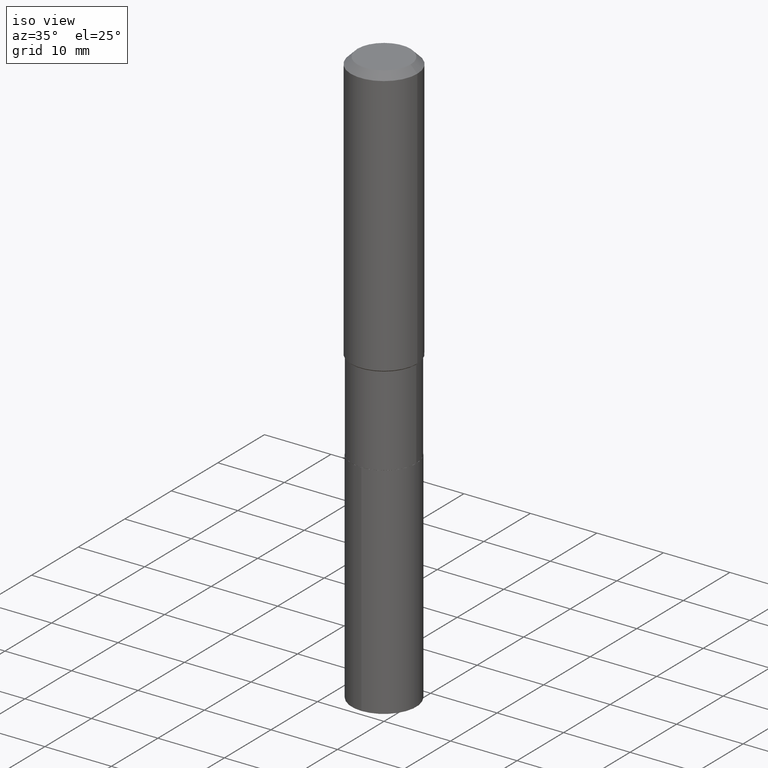
[diagram: clean part render]
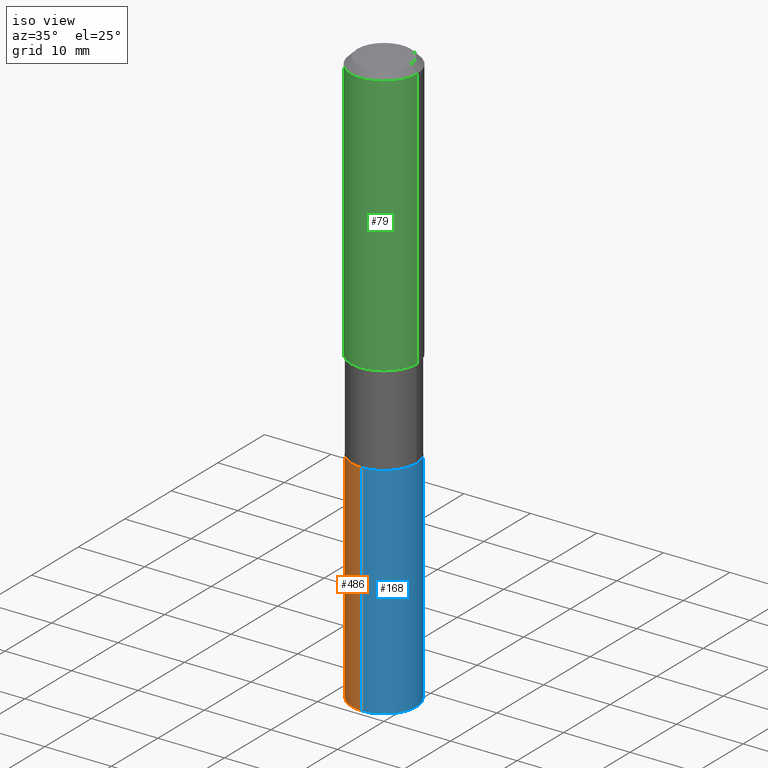
[diagram: same view with three faces highlighted in distinct colors, each labeled with its STEP entity id]
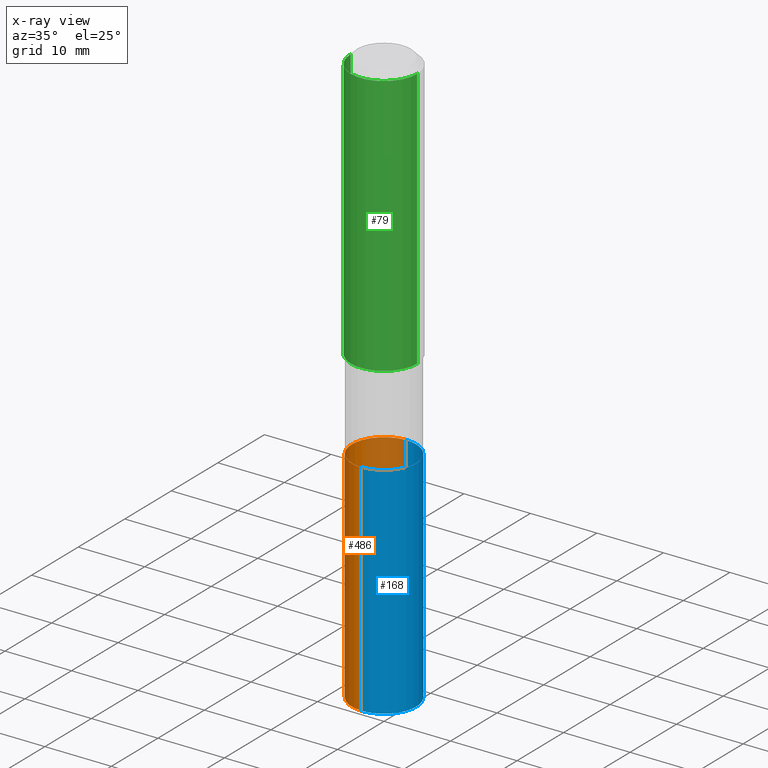
[diagram: x-ray of the same camera — body ghosted, the three highlighted faces saturated]
A machine part, iso view with three faces highlighted in distinct colors.
The next image is the same camera in x-ray (body ghosted, the three faces saturated) — at least one of them is partly hidden behind the body in this view.
Their STEP definitions:

[orange] entity #486 — the highlighted cylindrical surface (partial cylindrical patch) has radius 4.8501 mm, axis along (-0, 0, 1).
#9 = CARTESIAN_POINT ( 'NONE',  ( -1.333396723304140679E-15, -0.1909500000000074194, -2.125899999999999235 ) ) ;
#32 = CIRCLE ( 'NONE', #462, 0.1909500000000000086 ) ;
#35 = CARTESIAN_POINT ( 'NONE',  ( 1.356781353933995380E-15, 0.1909499999999925979, -2.125900000000000567 ) ) ;
#44 = ORIENTED_EDGE ( 'NONE', *, *, #71, .T. ) ;
#60 = VERTEX_POINT ( 'NONE', #173 ) ;
#67 = DIRECTION ( 'NONE',  ( -2.445600057802036841E-29, 3.491293379057366203E-15, 1.000000000000000000 ) ) ;
#69 = VECTOR ( 'NONE', #249, 39.37007874015748143 ) ;
#71 = EDGE_CURVE ( 'NONE', #119, #218, #263, .T. ) ;
#78 = AXIS2_PLACEMENT_3D ( 'NONE', #388, #275, #354 ) ;
#84 = FACE_OUTER_BOUND ( 'NONE', #156, .T. ) ;
#94 = ORIENTED_EDGE ( 'NONE', *, *, #238, .F. ) ;
#109 = ORIENTED_EDGE ( 'NONE', *, *, #217, .T. ) ;
#111 = DIRECTION ( 'NONE',  ( -6.982962677686265922E-15, -1.000000000000000000, 2.861322852751257324E-15 ) ) ;
#119 = VERTEX_POINT ( 'NONE', #126 ) ;
#126 = CARTESIAN_POINT ( 'NONE',  ( -1.333396723304108730E-15, -0.1909500000000120268, -3.428682794681327195 ) ) ;
#150 = ORIENTED_EDGE ( 'NONE', *, *, #333, .F. ) ;
#156 = EDGE_LOOP ( 'NONE', ( #150, #109, #44, #94 ) ) ;
#173 = CARTESIAN_POINT ( 'NONE',  ( 1.356781353933995577E-15, 0.1909499999999880737, -3.428682794681328083 ) ) ;
#190 = DIRECTION ( 'NONE',  ( -2.445600057802036841E-29, 3.491293379057366203E-15, 1.000000000000000000 ) ) ;
#199 = LINE ( 'NONE', #451, #208 ) ;
#208 = VECTOR ( 'NONE', #322, 39.37007874015748143 ) ;
#217 = EDGE_CURVE ( 'NONE', #60, #119, #467, .T. ) ;
#218 = VERTEX_POINT ( 'NONE', #479 ) ;
#238 = EDGE_CURVE ( 'NONE', #316, #218, #32, .T. ) ;
#239 = DIRECTION ( 'NONE',  ( -6.982962677686265922E-15, -1.000000000000000000, 2.861322852751257324E-15 ) ) ;
#249 = DIRECTION ( 'NONE',  ( -2.445600057802036841E-29, 3.491293379057366203E-15, 1.000000000000000000 ) ) ;
#256 = CYLINDRICAL_SURFACE ( 'NONE', #78, 0.1909500000000000086 ) ;
#263 = LINE ( 'NONE', #9, #69 ) ;
#275 = DIRECTION ( 'NONE',  ( -2.445600057802036841E-29, 3.491293379057366203E-15, 1.000000000000000000 ) ) ;
#280 = CARTESIAN_POINT ( 'NONE',  ( 5.198822135068982087E-29, -7.422540178246643119E-15, -2.125899999999999679 ) ) ;
#311 = AXIS2_PLACEMENT_3D ( 'NONE', #456, #67, #111 ) ;
#316 = VERTEX_POINT ( 'NONE', #35 ) ;
#322 = DIRECTION ( 'NONE',  ( -2.445600057802036841E-29, 3.491293379057366203E-15, 1.000000000000000000 ) ) ;
#333 = EDGE_CURVE ( 'NONE', #60, #316, #199, .T. ) ;
#354 = DIRECTION ( 'NONE',  ( -6.982962677686265922E-15, -1.000000000000000000, 2.861322852751257324E-15 ) ) ;
#388 = CARTESIAN_POINT ( 'NONE',  ( 5.198822135068982087E-29, -7.422540178246643119E-15, -2.125899999999999679 ) ) ;
#451 = CARTESIAN_POINT ( 'NONE',  ( 1.356781353933963037E-15, 0.1909499999999925979, -2.125900000000000567 ) ) ;
#456 = CARTESIAN_POINT ( 'NONE',  ( 8.384907813045136021E-29, -1.197093712366741292E-14, -3.428682794681327639 ) ) ;
#462 = AXIS2_PLACEMENT_3D ( 'NONE', #280, #190, #239 ) ;
#467 = CIRCLE ( 'NONE', #311, 0.1909500000000000086 ) ;
#479 = CARTESIAN_POINT ( 'NONE',  ( -1.333396723304140679E-15, -0.1909500000000074194, -2.125899999999999235 ) ) ;
#486 = ADVANCED_FACE ( 'NONE', ( #84 ), #256, .T. ) ;

[blue] entity #168 — the highlighted cylindrical surface (partial cylindrical patch) has radius 4.8501 mm, axis along (-0, 0, 1).
#9 = CARTESIAN_POINT ( 'NONE',  ( -1.333396723304140679E-15, -0.1909500000000074194, -2.125899999999999235 ) ) ;
#28 = DIRECTION ( 'NONE',  ( -6.982962677686265922E-15, -1.000000000000000000, 2.861322852751257324E-15 ) ) ;
#35 = CARTESIAN_POINT ( 'NONE',  ( 1.356781353933995380E-15, 0.1909499999999925979, -2.125900000000000567 ) ) ;
#60 = VERTEX_POINT ( 'NONE', #173 ) ;
#69 = VECTOR ( 'NONE', #249, 39.37007874015748143 ) ;
#71 = EDGE_CURVE ( 'NONE', #119, #218, #263, .T. ) ;
#89 = CARTESIAN_POINT ( 'NONE',  ( 8.384907813045136021E-29, -1.197093712366741292E-14, -3.428682794681327639 ) ) ;
#119 = VERTEX_POINT ( 'NONE', #126 ) ;
#126 = CARTESIAN_POINT ( 'NONE',  ( -1.333396723304108730E-15, -0.1909500000000120268, -3.428682794681327195 ) ) ;
#130 = AXIS2_PLACEMENT_3D ( 'NONE', #344, #140, #334 ) ;
#140 = DIRECTION ( 'NONE',  ( -2.445600057802036841E-29, 3.491293379057366203E-15, 1.000000000000000000 ) ) ;
#141 = CIRCLE ( 'NONE', #476, 0.1909500000000000086 ) ;
#165 = AXIS2_PLACEMENT_3D ( 'NONE', #89, #309, #229 ) ;
#168 = ADVANCED_FACE ( 'NONE', ( #220 ), #221, .T. ) ;
#173 = CARTESIAN_POINT ( 'NONE',  ( 1.356781353933995577E-15, 0.1909499999999880737, -3.428682794681328083 ) ) ;
#196 = EDGE_CURVE ( 'NONE', #218, #316, #141, .T. ) ;
#197 = CIRCLE ( 'NONE', #165, 0.1909500000000000086 ) ;
#199 = LINE ( 'NONE', #451, #208 ) ;
#202 = ORIENTED_EDGE ( 'NONE', *, *, #333, .T. ) ;
#208 = VECTOR ( 'NONE', #322, 39.37007874015748143 ) ;
#218 = VERTEX_POINT ( 'NONE', #479 ) ;
#220 = FACE_OUTER_BOUND ( 'NONE', #342, .T. ) ;
#221 = CYLINDRICAL_SURFACE ( 'NONE', #130, 0.1909500000000000086 ) ;
#225 = ORIENTED_EDGE ( 'NONE', *, *, #234, .T. ) ;
#229 = DIRECTION ( 'NONE',  ( -6.982962677686265922E-15, -1.000000000000000000, 2.861322852751257324E-15 ) ) ;
#234 = EDGE_CURVE ( 'NONE', #119, #60, #197, .T. ) ;
#249 = DIRECTION ( 'NONE',  ( -2.445600057802036841E-29, 3.491293379057366203E-15, 1.000000000000000000 ) ) ;
#263 = LINE ( 'NONE', #9, #69 ) ;
#283 = ORIENTED_EDGE ( 'NONE', *, *, #71, .F. ) ;
#307 = ORIENTED_EDGE ( 'NONE', *, *, #196, .F. ) ;
#309 = DIRECTION ( 'NONE',  ( -2.445600057802036841E-29, 3.491293379057366203E-15, 1.000000000000000000 ) ) ;
#316 = VERTEX_POINT ( 'NONE', #35 ) ;
#322 = DIRECTION ( 'NONE',  ( -2.445600057802036841E-29, 3.491293379057366203E-15, 1.000000000000000000 ) ) ;
#333 = EDGE_CURVE ( 'NONE', #60, #316, #199, .T. ) ;
#334 = DIRECTION ( 'NONE',  ( -6.982962677686265922E-15, -1.000000000000000000, 2.861322852751257324E-15 ) ) ;
#342 = EDGE_LOOP ( 'NONE', ( #225, #202, #307, #283 ) ) ;
#344 = CARTESIAN_POINT ( 'NONE',  ( 5.198822135068982087E-29, -7.422540178246643119E-15, -2.125899999999999679 ) ) ;
#409 = DIRECTION ( 'NONE',  ( -2.445600057802036841E-29, 3.491293379057366203E-15, 1.000000000000000000 ) ) ;
#451 = CARTESIAN_POINT ( 'NONE',  ( 1.356781353933963037E-15, 0.1909499999999925979, -2.125900000000000567 ) ) ;
#475 = CARTESIAN_POINT ( 'NONE',  ( 5.198822135068982087E-29, -7.422540178246643119E-15, -2.125899999999999679 ) ) ;
#476 = AXIS2_PLACEMENT_3D ( 'NONE', #475, #409, #28 ) ;
#479 = CARTESIAN_POINT ( 'NONE',  ( -1.333396723304140679E-15, -0.1909500000000074194, -2.125899999999999235 ) ) ;

[green] entity #79 — the highlighted cylindrical surface (partial cylindrical patch) has radius 5 mm, axis along (-0, 0, 1).
#8 = AXIS2_PLACEMENT_3D ( 'NONE', #108, #457, #22 ) ;
#22 = DIRECTION ( 'NONE',  ( 1.000000000000000000, -6.982962677686265922E-15, 0.000000000000000000 ) ) ;
#50 = VERTEX_POINT ( 'NONE', #365 ) ;
#57 = EDGE_CURVE ( 'NONE', #103, #63, #254, .T. ) ;
#58 = CARTESIAN_POINT ( 'NONE',  ( 0.1968500000000000250, -1.512055823412797189E-15, -0.03937000000000029365 ) ) ;
#63 = VERTEX_POINT ( 'NONE', #58 ) ;
#64 = CARTESIAN_POINT ( 'NONE',  ( 0.1968500000000001082, -1.374596203102542397E-15, 9.598753983154305062E-30 ) ) ;
#66 = ORIENTED_EDGE ( 'NONE', *, *, #57, .T. ) ;
#79 = ADVANCED_FACE ( 'NONE', ( #289 ), #443, .T. ) ;
#103 = VERTEX_POINT ( 'NONE', #398 ) ;
#107 = CIRCLE ( 'NONE', #8, 0.1968500000000000250 ) ;
#108 = CARTESIAN_POINT ( 'NONE',  ( 9.627810689950954155E-31, -1.374596203102556547E-16, -0.03937000000000029365 ) ) ;
#110 = VERTEX_POINT ( 'NONE', #438 ) ;
#135 = EDGE_CURVE ( 'NONE', #110, #50, #381, .T. ) ;
#146 = DIRECTION ( 'NONE',  ( -2.445468806185136877E-29, 3.491481338843145188E-15, 1.000000000000000000 ) ) ;
#187 = AXIS2_PLACEMENT_3D ( 'NONE', #369, #292, #445 ) ;
#200 = EDGE_LOOP ( 'NONE', ( #336, #201, #66, #380 ) ) ;
#201 = ORIENTED_EDGE ( 'NONE', *, *, #350, .T. ) ;
#223 = CARTESIAN_POINT ( 'NONE',  ( -0.1968500000000001082, 1.398703375343757985E-15, -9.682923725166787881E-30 ) ) ;
#254 = LINE ( 'NONE', #64, #404 ) ;
#259 = DIRECTION ( 'NONE',  ( -2.445468806185136877E-29, 3.491481338843145188E-15, 1.000000000000000000 ) ) ;
#262 = CIRCLE ( 'NONE', #345, 0.1968500000000002192 ) ;
#282 = VECTOR ( 'NONE', #146, 39.37007874015748143 ) ;
#284 = DIRECTION ( 'NONE',  ( -2.445468806185136597E-29, 3.491481338843145583E-15, 1.000000000000000000 ) ) ;
#289 = FACE_OUTER_BOUND ( 'NONE', #200, .T. ) ;
#292 = DIRECTION ( 'NONE',  ( -2.445468806185136597E-29, 3.491481338843145583E-15, 1.000000000000000000 ) ) ;
#336 = ORIENTED_EDGE ( 'NONE', *, *, #135, .F. ) ;
#345 = AXIS2_PLACEMENT_3D ( 'NONE', #470, #284, #433 ) ;
#350 = EDGE_CURVE ( 'NONE', #110, #103, #262, .T. ) ;
#365 = CARTESIAN_POINT ( 'NONE',  ( -0.1968500000000000250, -1.446277821392495794E-15, -0.03937000000000029365 ) ) ;
#369 = CARTESIAN_POINT ( 'NONE',  ( 0.000000000000000000, 0.000000000000000000, 0.000000000000000000 ) ) ;
#380 = ORIENTED_EDGE ( 'NONE', *, *, #406, .F. ) ;
#381 = LINE ( 'NONE', #223, #282 ) ;
#398 = CARTESIAN_POINT ( 'NONE',  ( 0.1968500000000002192, -6.927098976264795951E-15, -1.590299999999999381 ) ) ;
#404 = VECTOR ( 'NONE', #259, 39.37007874015748143 ) ;
#406 = EDGE_CURVE ( 'NONE', #50, #63, #107, .T. ) ;
#433 = DIRECTION ( 'NONE',  ( 1.000000000000000000, -6.982962677686265922E-15, 0.000000000000000000 ) ) ;
#438 = CARTESIAN_POINT ( 'NONE',  ( -0.1968500000000002192, -4.153799397818493400E-15, -1.590299999999999381 ) ) ;
#443 = CYLINDRICAL_SURFACE ( 'NONE', #187, 0.1968500000000001082 ) ;
#445 = DIRECTION ( 'NONE',  ( 1.000000000000000000, -6.982962677686266711E-15, 4.876176775795935793E-29 ) ) ;
#457 = DIRECTION ( 'NONE',  ( -2.445468806185136597E-29, 3.491481338843145583E-15, 1.000000000000000000 ) ) ;
#470 = CARTESIAN_POINT ( 'NONE',  ( 3.889029042476221794E-29, -5.552502773162252765E-15, -1.590299999999999381 ) ) ;